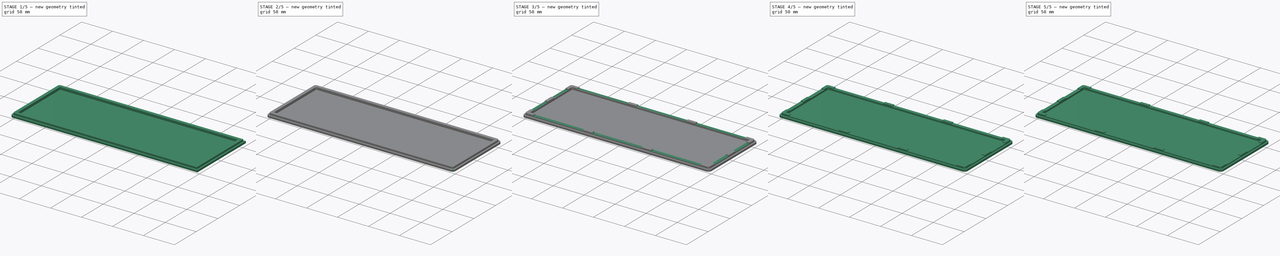
[diagram: build sequence overview — one tinted view per stage of 5, left to right]
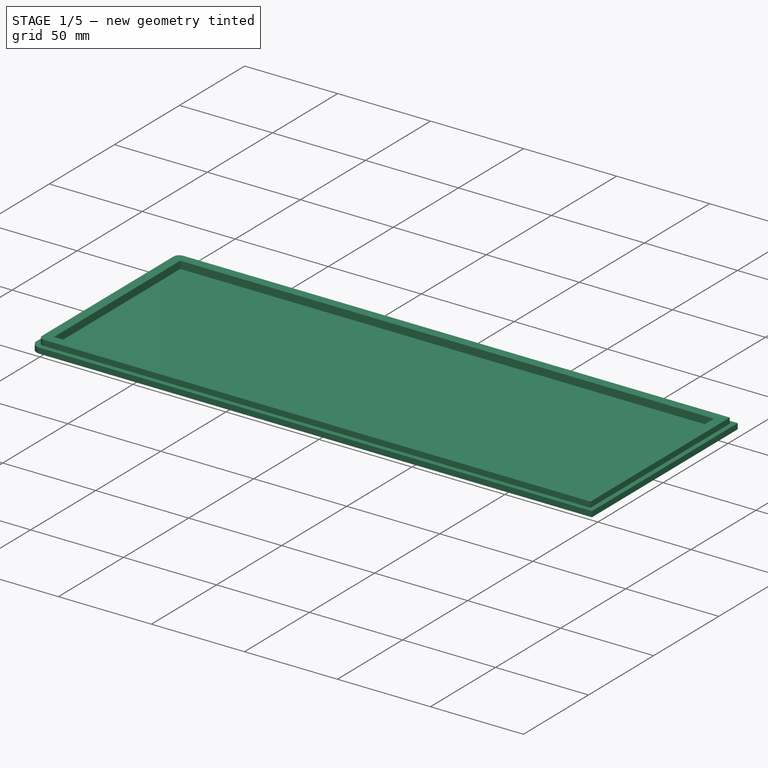
[diagram: stage 1 of 5 — iso view after this stage's code; geometry added in this stage tinted green]
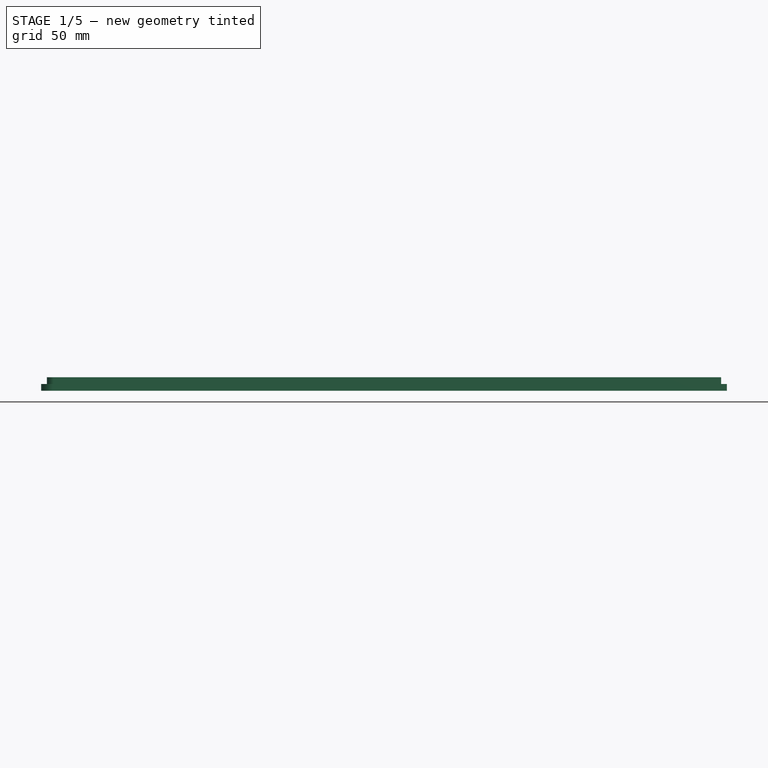
[diagram: stage 1 of 5 — front view after this stage's code; geometry added in this stage tinted green]
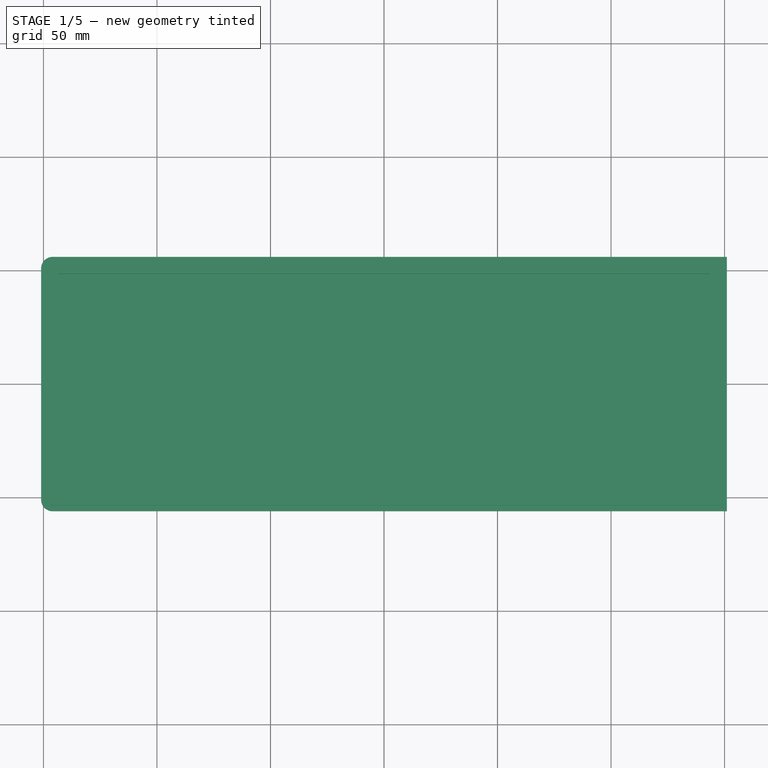
[diagram: stage 1 of 5 — top view after this stage's code; geometry added in this stage tinted green]
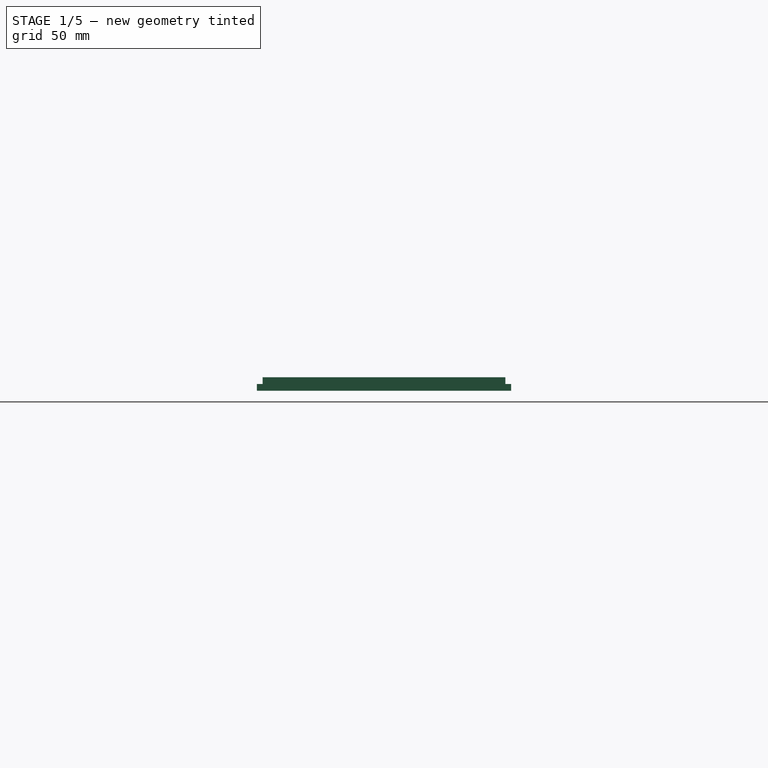
[diagram: stage 1 of 5 — right view after this stage's code; geometry added in this stage tinted green]
FCSTD DOCUMENT  (FreeCAD 0.19R)
Label: jykb60_gasket_bottom_v2
License: All rights reserved
LicenseURL: http://en.wikipedia.org/wiki/All_rights_reserved
objects: PartDesign::Fillet×32, Sketcher::SketchObject×5, PartDesign::Pocket×4, PartDesign::Pad×1, PartDesign::Body×1
note: 80 computed .brp shape members not serialized (recipe doc carries the construction recipe); baked Part::Feature solids carry a one-line shape summary decoded from their .brp

FEATURE [Sketcher::SketchObject] Sketch
  FullyConstrained = true
  MapMode = 5
  Support = -> [XY_Plane]
  sketch-geometry (4):
    g0: LineSegment StartX=-151 StartY=56 StartZ=0 EndX=151 EndY=56 EndZ=0
    g1: LineSegment StartX=151 StartY=56 StartZ=0 EndX=151 EndY=-56 EndZ=0
    g2: LineSegment StartX=151 StartY=-56 StartZ=0 EndX=-151 EndY=-56 EndZ=0
    g3: LineSegment StartX=-151 StartY=-56 StartZ=0 EndX=-151 EndY=56 EndZ=0
  constraints (11):
    c: Coincident(g0,g1)
    c: Coincident(g1,g2)
    c: Coincident(g2,g3)
    c: Coincident(g3,g0)
    c: Horizontal(g0)
    c: Horizontal(g2)
    c: Vertical(g1)
    c: Vertical(g3)
    c: DistanceX(g0,g0) = 302
    c: DistanceY(g1,g1) = 112
    c: Symmetric(g0,g1,g-1)
FEATURE [PartDesign::Pad] Pad
  Direction = (1,1,1)
  Length = 6
  Length2 = 100
  Profile = -> Sketch
  Type = 0
FEATURE [Sketcher::SketchObject] Sketch001
  FullyConstrained = true
  MapMode = 5
  Placement = pos=(0,0,6) rot=(0,0,1;0rad)
  Support = -> [Pad]
  sketch-geometry (4):
    g0: LineSegment StartX=-143.5 StartY=48.5 StartZ=0 EndX=143.5 EndY=48.5 EndZ=0
    g1: LineSegment StartX=143.5 StartY=48.5 StartZ=0 EndX=143.5 EndY=-48.5 EndZ=0
    g2: LineSegment StartX=143.5 StartY=-48.5 StartZ=0 EndX=-143.5 EndY=-48.5 EndZ=0
    g3: LineSegment StartX=-143.5 StartY=-48.5 StartZ=0 EndX=-143.5 EndY=48.5 EndZ=0
  constraints (11):
    c: Coincident(g0,g1)
    c: Coincident(g1,g2)
    c: Coincident(g2,g3)
    c: Coincident(g3,g0)
    c: Horizontal(g0)
    c: Horizontal(g2)
    c: Vertical(g1)
    c: Vertical(g3)
    c: DistanceX(g0,g0) = 287
    c: DistanceY(g1,g1) = 97
    c: Symmetric(g0,g1,g-1)
FEATURE [PartDesign::Pocket] Pocket
  BaseFeature = -> Pad
  Length = 4
  Length2 = 100
  Profile = -> Sketch001
  Type = 0
FEATURE [Sketcher::SketchObject] Sketch002
  FullyConstrained = true
  MapMode = 5
  Placement = pos=(0,0,6) rot=(0,0,1;0rad)
  Support = -> [Pocket]
  sketch-geometry (8):
    g0: LineSegment StartX=-148.48 StartY=53.48 StartZ=0 EndX=148.48 EndY=53.48 EndZ=0
    g1: LineSegment StartX=148.48 StartY=53.48 StartZ=0 EndX=148.48 EndY=-53.48 EndZ=0
    g2: LineSegment StartX=148.48 StartY=-53.48 StartZ=0 EndX=-148.48 EndY=-53.48 EndZ=0
    g3: LineSegment StartX=-148.48 StartY=-53.48 StartZ=0 EndX=-148.48 EndY=53.48 EndZ=0
    g4: LineSegment StartX=-151 StartY=56 StartZ=0 EndX=151 EndY=56 EndZ=0
    g5: LineSegment StartX=151 StartY=56 StartZ=0 EndX=151 EndY=-56 EndZ=0
    g6: LineSegment StartX=151 StartY=-56 StartZ=0 EndX=-151 EndY=-56 EndZ=0
    g7: LineSegment StartX=-151 StartY=-56 StartZ=0 EndX=-151 EndY=56 EndZ=0
  constraints (22):
    c: Coincident(g0,g1)
    c: Coincident(g1,g2)
    c: Coincident(g2,g3)
    c: Coincident(g3,g0)
    c: Horizontal(g0)
    c: Horizontal(g2)
    c: Vertical(g1)
    c: Vertical(g3)
    c: DistanceX(g0,g0) = 296.96
    c: DistanceY(g1,g1) = 106.96
    c: Symmetric(g0,g1,g-1)
    c: Coincident(g4,g5)
    c: Coincident(g5,g6)
    c: Coincident(g6,g7)
    c: Coincident(g7,g4)
    c: Horizontal(g4)
    c: Horizontal(g6)
    c: Vertical(g5)
    c: Vertical(g7)
    c: DistanceX(g4,g4) = 302
    c: DistanceY(g5,g5) = 112
    c: Symmetric(g4,g5,g-1)
FEATURE [PartDesign::Pocket] Pocket001
  BaseFeature = -> Pocket
  Length = 3.02
  Length2 = 100
  Profile = -> Sketch002
  Type = 0
FEATURE [PartDesign::Fillet] Fillet
  Base = -> Pocket001 [Edge17]
  BaseFeature = -> Pocket001
  Radius = 3
  SupportTransform = false
FEATURE [PartDesign::Fillet] Fillet001
  Base = -> Fillet [Edge26]
  BaseFeature = -> Fillet
  Radius = 5
  SupportTransform = false
FEATURE [PartDesign::Fillet] Fillet002
  Base = -> Fillet001 [Edge19]
  BaseFeature = -> Fillet001
  Radius = 5
  SupportTransform = false
FEATURE [PartDesign::Fillet] Fillet003
  Base = -> Fillet002 [Edge26]
  BaseFeature = -> Fillet002
  Radius = 3
  SupportTransform = false
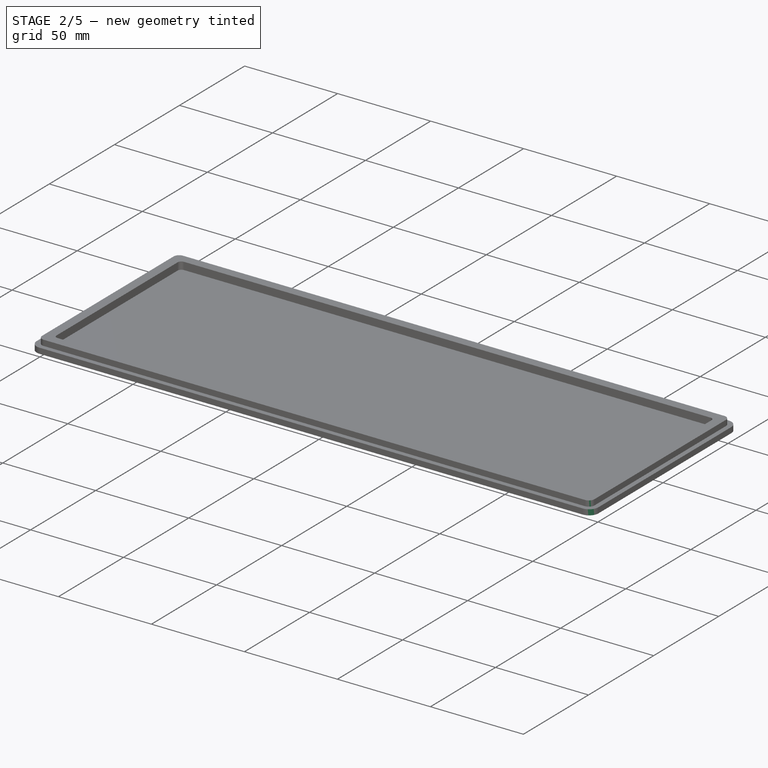
[diagram: stage 2 of 5 — iso view after this stage's code; geometry added in this stage tinted green]
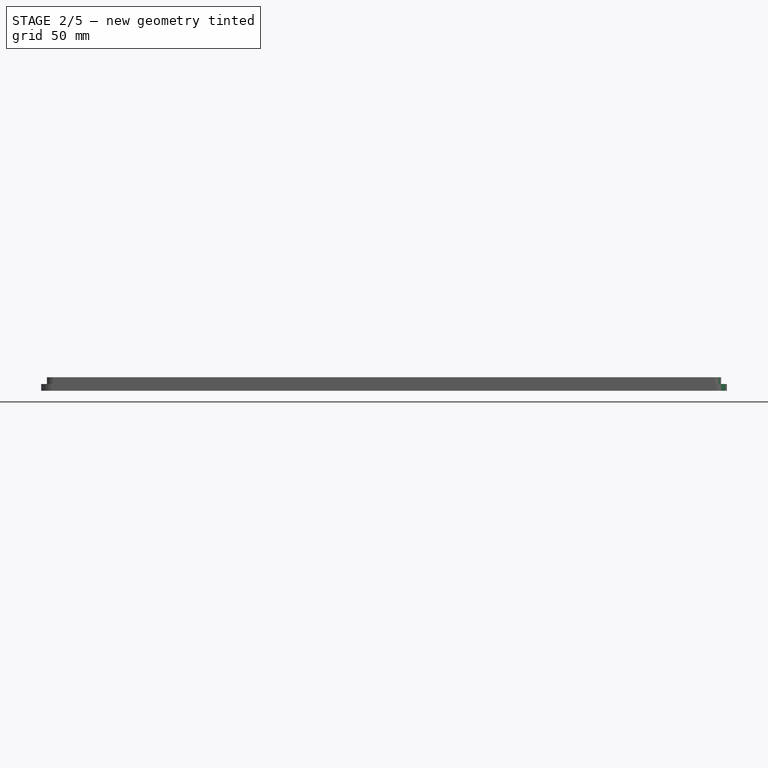
[diagram: stage 2 of 5 — front view after this stage's code; geometry added in this stage tinted green]
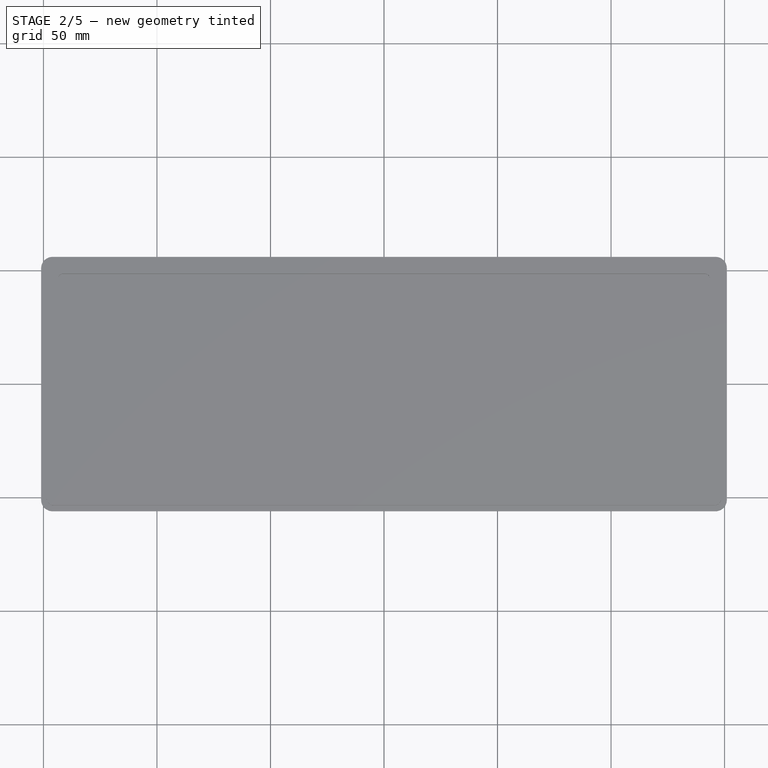
[diagram: stage 2 of 5 — top view after this stage's code; geometry added in this stage tinted green]
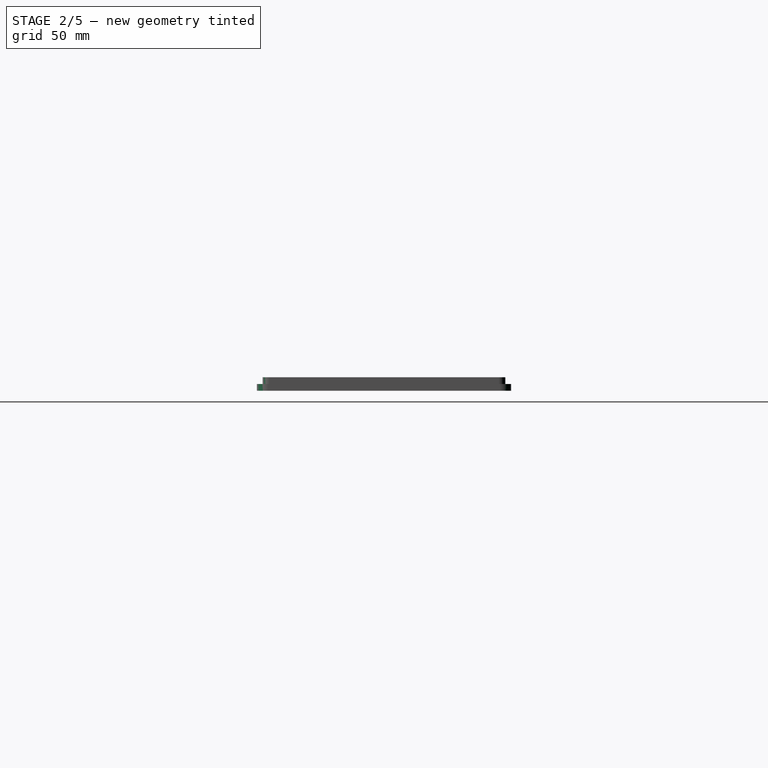
[diagram: stage 2 of 5 — right view after this stage's code; geometry added in this stage tinted green]
FEATURE [PartDesign::Fillet] Fillet004
  Base = -> Fillet003 [Edge41]
  BaseFeature = -> Fillet003
  Radius = 2
  SupportTransform = false
FEATURE [PartDesign::Fillet] Fillet005
  Base = -> Fillet004 [Edge19]
  BaseFeature = -> Fillet004
  Radius = 2
  SupportTransform = false
FEATURE [PartDesign::Fillet] Fillet006
  Base = -> Fillet005 [Edge53]
  BaseFeature = -> Fillet005
  Radius = 5
  SupportTransform = false
FEATURE [PartDesign::Fillet] Fillet007
  Base = -> Fillet006 [Edge38]
  BaseFeature = -> Fillet006
  Radius = 3
  SupportTransform = false
FEATURE [PartDesign::Fillet] Fillet008
  Base = -> Fillet007 [Edge56]
  BaseFeature = -> Fillet007
  Radius = 2
  SupportTransform = false
FEATURE [PartDesign::Fillet] Fillet009
  Base = -> Fillet008 [Edge58]
  BaseFeature = -> Fillet008
  Radius = 5
  SupportTransform = false
FEATURE [PartDesign::Fillet] Fillet010
  Base = -> Fillet009 [Edge40]
  BaseFeature = -> Fillet009
  Radius = 3
  SupportTransform = false
FEATURE [PartDesign::Fillet] Fillet011
  Base = -> Fillet010 [Edge63]
  BaseFeature = -> Fillet010
  Radius = 2
  SupportTransform = false
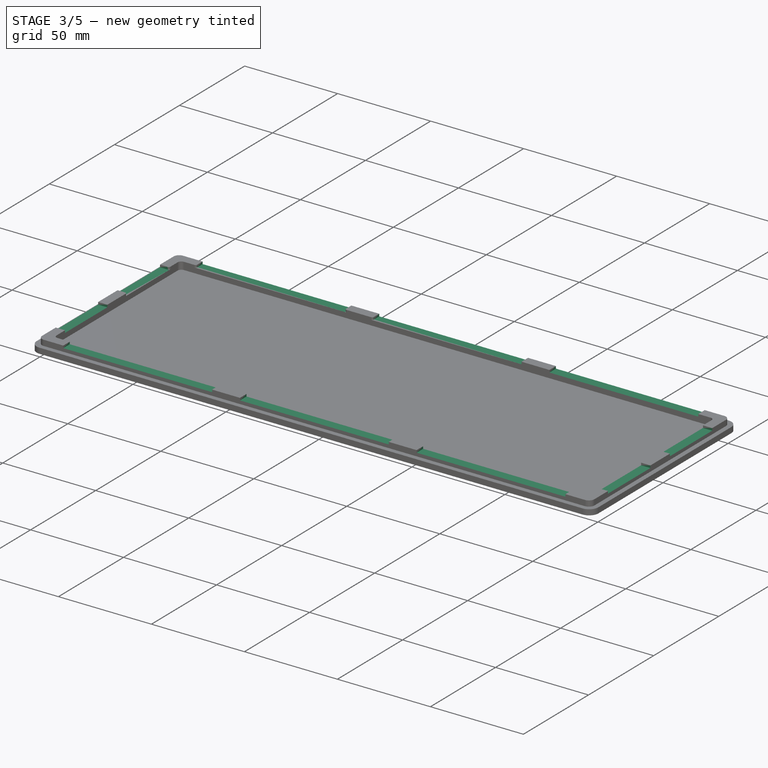
[diagram: stage 3 of 5 — iso view after this stage's code; geometry added in this stage tinted green]
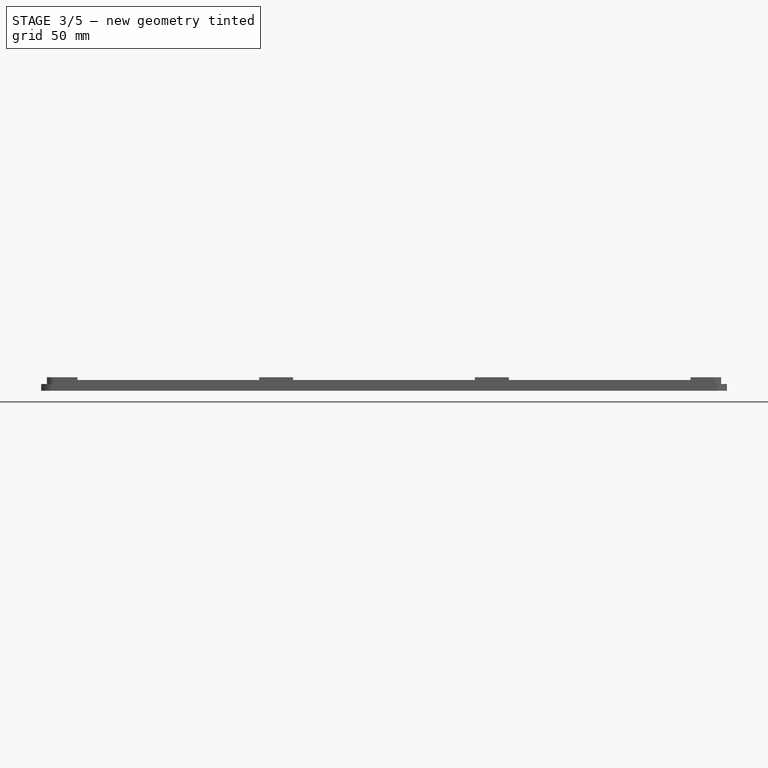
[diagram: stage 3 of 5 — front view after this stage's code; geometry added in this stage tinted green]
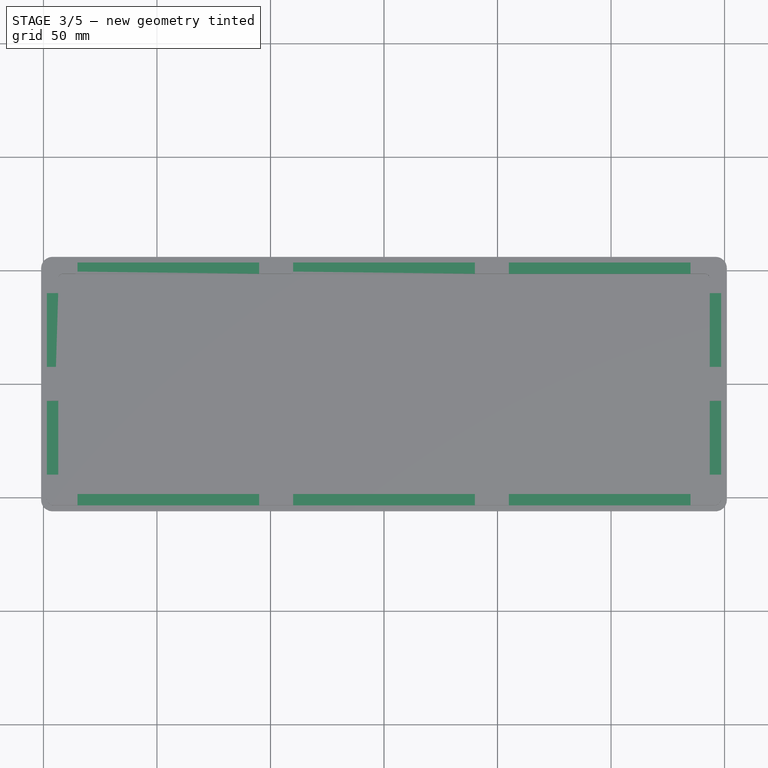
[diagram: stage 3 of 5 — top view after this stage's code; geometry added in this stage tinted green]
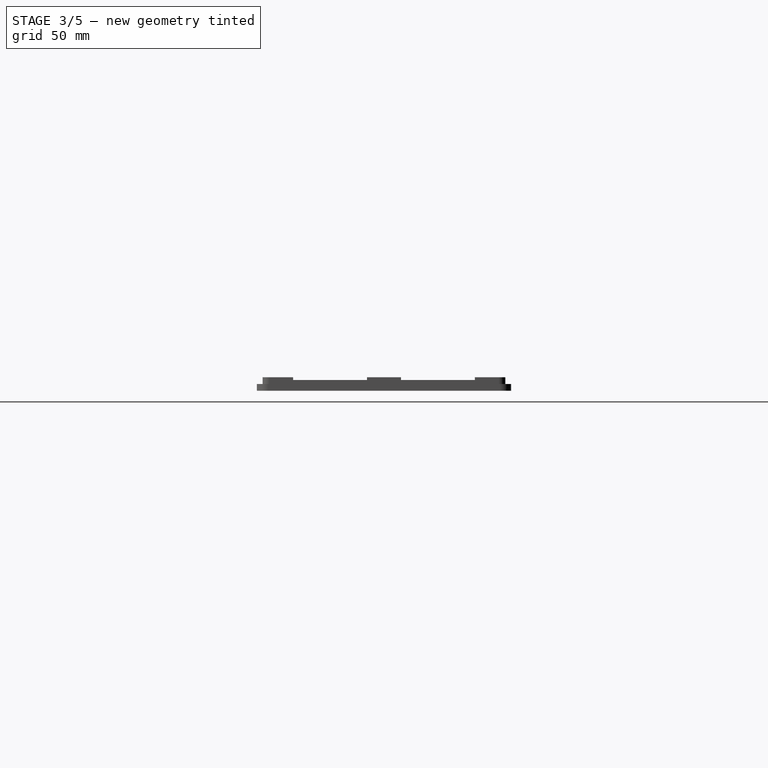
[diagram: stage 3 of 5 — right view after this stage's code; geometry added in this stage tinted green]
FEATURE [Sketcher::SketchObject] Sketch003
  FullyConstrained = true
  MapMode = 5
  Placement = pos=(0,0,6) rot=(0,0,1;0rad)
  Support = -> [Fillet011]
  sketch-geometry (24):
    g0: LineSegment StartX=-40 StartY=53.5 StartZ=0 EndX=40 EndY=53.5 EndZ=0
    g1: LineSegment StartX=40 StartY=53.5 StartZ=0 EndX=40 EndY=48.5 EndZ=0
    g2: LineSegment StartX=40 StartY=48.5 StartZ=0 EndX=-40 EndY=48.5 EndZ=0
    g3: LineSegment StartX=-40 StartY=48.5 StartZ=0 EndX=-40 EndY=53.5 EndZ=0
    g4: LineSegment StartX=-135 StartY=53.5 StartZ=0 EndX=-55 EndY=53.5 EndZ=0
    g5: LineSegment StartX=-55 StartY=53.5 StartZ=0 EndX=-55 EndY=48.5 EndZ=0
    g6: LineSegment StartX=-55 StartY=48.5 StartZ=0 EndX=-135 EndY=48.5 EndZ=0
    g7: LineSegment StartX=-135 StartY=48.5 StartZ=0 EndX=-135 EndY=53.5 EndZ=0
    g8: LineSegment StartX=55 StartY=53.5 StartZ=0 EndX=135 EndY=53.5 EndZ=0
    g9: LineSegment StartX=135 StartY=53.5 StartZ=0 EndX=135 EndY=48.5 EndZ=0
    g10: LineSegment StartX=135 StartY=48.5 StartZ=0 EndX=55 EndY=48.5 EndZ=0
    g11: LineSegment StartX=55 StartY=48.5 StartZ=0 EndX=55 EndY=53.5 EndZ=0
    g12: LineSegment StartX=55 StartY=-48.5 StartZ=0 EndX=135 EndY=-48.5 EndZ=0
    g13: LineSegment StartX=135 StartY=-48.5 StartZ=0 EndX=135 EndY=-53.5 EndZ=0
    g14: LineSegment StartX=135 StartY=-53.5 StartZ=0 EndX=55 EndY=-53.5 EndZ=0
    g15: LineSegment StartX=55 StartY=-53.5 StartZ=0 EndX=55 EndY=-48.5 EndZ=0
    g16: LineSegment StartX=-40 StartY=-48.5 StartZ=0 EndX=40 EndY=-48.5 EndZ=0
    g17: LineSegment StartX=40 StartY=-48.5 StartZ=0 EndX=40 EndY=-53.5 EndZ=0
    g18: LineSegment StartX=40 StartY=-53.5 StartZ=0 EndX=-40 EndY=-53.5 EndZ=0
    g19: LineSegment StartX=-40 StartY=-53.5 StartZ=0 EndX=-40 EndY=-48.5 EndZ=0
    g20: LineSegment StartX=-135 StartY=-48.5 StartZ=0 EndX=-55 EndY=-48.5 EndZ=0
    g21: LineSegment StartX=-55 StartY=-48.5 StartZ=0 EndX=-55 EndY=-53.5 EndZ=0
    g22: LineSegment StartX=-55 StartY=-53.5 StartZ=0 EndX=-135 EndY=-53.5 EndZ=0
    g23: LineSegment StartX=-135 StartY=-53.5 StartZ=0 EndX=-135 EndY=-48.5 EndZ=0
  constraints (72):
    c: Coincident(g0,g1)
    c: Coincident(g1,g2)
    c: Coincident(g2,g3)
    c: Coincident(g3,g0)
    c: Horizontal(g0)
    c: Horizontal(g2)
    c: Vertical(g1)
    c: Vertical(g3)
    c: Coincident(g4,g5)
    c: Coincident(g5,g6)
    c: Coincident(g6,g7)
    c: Coincident(g7,g4)
    c: Horizontal(g4)
    c: Horizontal(g6)
    c: Vertical(g5)
    c: Vertical(g7)
    c: Coincident(g8,g9)
    c: Coincident(g9,g10)
    c: Coincident(g10,g11)
    c: Coincident(g11,g8)
    c: Horizontal(g8)
    c: Horizontal(g10)
    c: Vertical(g9)
    c: Vertical(g11)
    c: Coincident(g12,g13)
    c: Coincident(g13,g14)
    c: Coincident(g14,g15)
    c: Coincident(g15,g12)
    c: Horizontal(g12)
    c: Horizontal(g14)
    c: Vertical(g13)
    c: Vertical(g15)
    c: Coincident(g16,g17)
    c: Coincident(g17,g18)
    c: Coincident(g18,g19)
    c: Coincident(g19,g16)
    c: Horizontal(g16)
    c: Horizontal(g18)
    c: Vertical(g17)
    c: Vertical(g19)
    c: Coincident(g20,g21)
    c: Coincident(g21,g22)
    c: Coincident(g22,g23)
    c: Coincident(g23,g20)
    c: Horizontal(g20)
    c: Horizontal(g22)
    c: Vertical(g21)
    c: Vertical(g23)
    c: DistanceX(g8,g8) = 80
    c: DistanceX(g0,g0) = 80
    c: DistanceX(g4,g4) = 80
    c: DistanceX(g20,g20) = 80
    c: DistanceX(g16,g16) = 80
    c: DistanceX(g12,g12) = 80
    c: DistanceY(g9,g9) = 5
    c: DistanceY(g1,g1) = 5
    c: DistanceY(g5,g5) = 5
    c: DistanceY(g21,g21) = 5
    c: DistanceY(g17,g17) = 5
    c: DistanceY(g13,g13) = 5
    c: DistanceX(g4,g0) = 15
    c: DistanceX(g0,g8) = 15
    c: DistanceX(g16,g12) = 15
    c: DistanceX(g20,g16) = 15
    c: DistanceX(g-1,g0) = 40
    c: DistanceX(g-1,g16) = 40
    c: DistanceY(g-1,g5) = 48.5
    c: DistanceY(g-1,g2) = 48.5
    c: DistanceY(g-1,g10) = 48.5
    c: DistanceY(g12,g-1) = 48.5
    c: DistanceY(g16,g-1) = 48.5
    c: DistanceY(g20,g-1) = 48.5
FEATURE [PartDesign::Pocket] Pocket002
  BaseFeature = -> Fillet011
  Length = 1.25
  Length2 = 100
  Profile = -> Sketch003
  Type = 0
FEATURE [Sketcher::SketchObject] Sketch004
  FullyConstrained = true
  MapMode = 5
  Placement = pos=(0,0,6) rot=(0,0,1;0rad)
  Support = -> [Pocket002]
  sketch-geometry (16):
    g0: LineSegment StartX=-148.5 StartY=40 StartZ=0 EndX=-143.5 EndY=40 EndZ=0
    g1: LineSegment StartX=-143.5 StartY=40 StartZ=0 EndX=-143.5 EndY=7.5 EndZ=0
    g2: LineSegment StartX=-143.5 StartY=7.5 StartZ=0 EndX=-148.5 EndY=7.5 EndZ=0
    g3: LineSegment StartX=-148.5 StartY=7.5 StartZ=0 EndX=-148.5 EndY=40 EndZ=0
    g4: LineSegment StartX=-148.5 StartY=-7.5 StartZ=0 EndX=-143.5 EndY=-7.5 EndZ=0
    g5: LineSegment StartX=-143.5 StartY=-7.5 StartZ=0 EndX=-143.5 EndY=-40 EndZ=0
    g6: LineSegment StartX=-143.5 StartY=-40 StartZ=0 EndX=-148.5 EndY=-40 EndZ=0
    g7: LineSegment StartX=-148.5 StartY=-40 StartZ=0 EndX=-148.5 EndY=-7.5 EndZ=0
    g8: LineSegment StartX=143.5 StartY=40 StartZ=0 EndX=148.5 EndY=40 EndZ=0
    g9: LineSegment StartX=148.5 StartY=40 StartZ=0 EndX=148.5 EndY=7.5 EndZ=0
    g10: LineSegment StartX=148.5 StartY=7.5 StartZ=0 EndX=143.5 EndY=7.5 EndZ=0
    g11: LineSegment StartX=143.5 StartY=7.5 StartZ=0 EndX=143.5 EndY=40 EndZ=0
    g12: LineSegment StartX=143.5 StartY=-7.5 StartZ=0 EndX=148.5 EndY=-7.5 EndZ=0
    g13: LineSegment StartX=148.5 StartY=-7.5 StartZ=0 EndX=148.5 EndY=-40 EndZ=0
    g14: LineSegment StartX=148.5 StartY=-40 StartZ=0 EndX=143.5 EndY=-40 EndZ=0
    g15: LineSegment StartX=143.5 StartY=-40 StartZ=0 EndX=143.5 EndY=-7.5 EndZ=0
  constraints (48):
    c: Coincident(g0,g1)
    c: Coincident(g1,g2)
    c: Coincident(g2,g3)
    c: Coincident(g3,g0)
    c: Horizontal(g0)
    c: Horizontal(g2)
    c: Vertical(g1)
    c: Vertical(g3)
    c: Coincident(g4,g5)
    c: Coincident(g5,g6)
    c: Coincident(g6,g7)
    c: Coincident(g7,g4)
    c: Horizontal(g4)
    c: Horizontal(g6)
    c: Vertical(g5)
    c: Vertical(g7)
    c: Coincident(g8,g9)
    c: Coincident(g9,g10)
    c: Coincident(g10,g11)
    c: Coincident(g11,g8)
    c: Horizontal(g8)
    c: Horizontal(g10)
    c: Vertical(g9)
    c: Vertical(g11)
    c: Coincident(g12,g13)
    c: Coincident(g13,g14)
    c: Coincident(g14,g15)
    c: Coincident(g15,g12)
    c: Horizontal(g12)
    c: Horizontal(g14)
    c: Vertical(g13)
    c: Vertical(g15)
    c: DistanceX(g8,g8) = 5
    c: DistanceX(g14,g14) = 5
    c: DistanceX(g0,g0) = 5
    c: DistanceX(g6,g6) = 5
    c: DistanceY(g9,g9) = 32.5
    c: DistanceY(g13,g13) = 32.5
    c: DistanceY(g1,g1) = 32.5
    c: DistanceY(g5,g5) = 32.5
    c: DistanceY(g-1,g2) = 7.5
    c: DistanceY(g4,g-1) = 7.5
    c: DistanceY(g-1,g9) = 7.5
    c: DistanceY(g12,g-1) = 7.5
    c: DistanceX(g0,g-1) = 143.5
    c: DistanceX(g5,g-1) = 143.5
    c: DistanceX(g-1,g8) = 143.5
    c: DistanceX(g-1,g14) = 143.5
FEATURE [PartDesign::Pocket] Pocket003
  BaseFeature = -> Pocket002
  Length = 1.25
  Length2 = 100
  Profile = -> Sketch004
  Type = 0
FEATURE [PartDesign::Fillet] Fillet012
  Base = -> Pocket003 [Edge53]
  BaseFeature = -> Pocket003
  Radius = 1
  SupportTransform = false
FEATURE [PartDesign::Fillet] Fillet013
  Base = -> Fillet012 [Edge3]
  BaseFeature = -> Fillet012
  Radius = 1
  SupportTransform = false
FEATURE [PartDesign::Fillet] Fillet014
  Base = -> Fillet013 [Edge9]
  BaseFeature = -> Fillet013
  Radius = 1
  SupportTransform = false
FEATURE [PartDesign::Fillet] Fillet015
  Base = -> Fillet014 [Edge95]
  BaseFeature = -> Fillet014
  Radius = 1
  SupportTransform = false
FEATURE [PartDesign::Fillet] Fillet016
  Base = -> Fillet015 [Edge17]
  BaseFeature = -> Fillet015
  Radius = 1
  SupportTransform = false
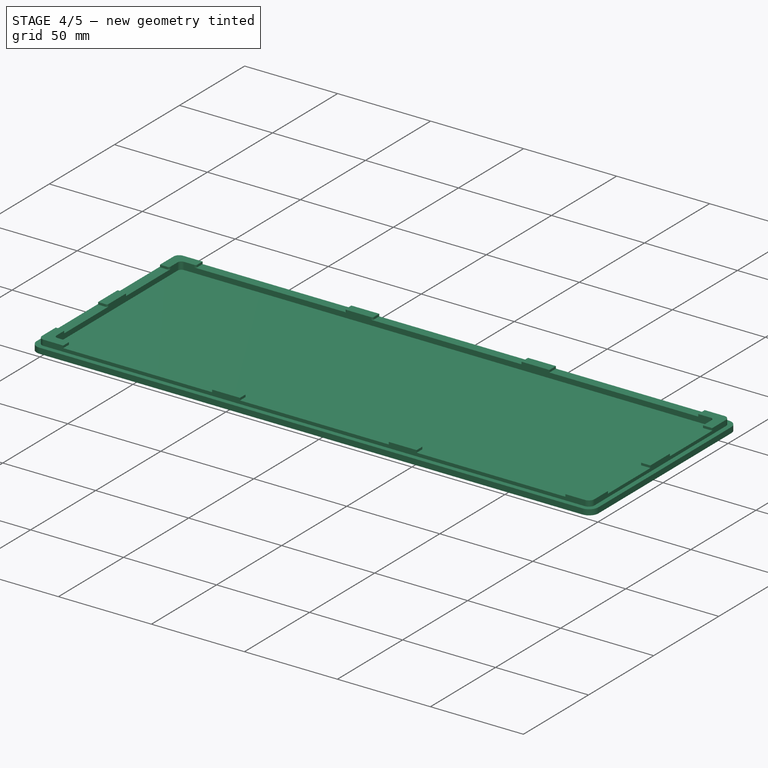
[diagram: stage 4 of 5 — iso view after this stage's code; geometry added in this stage tinted green]
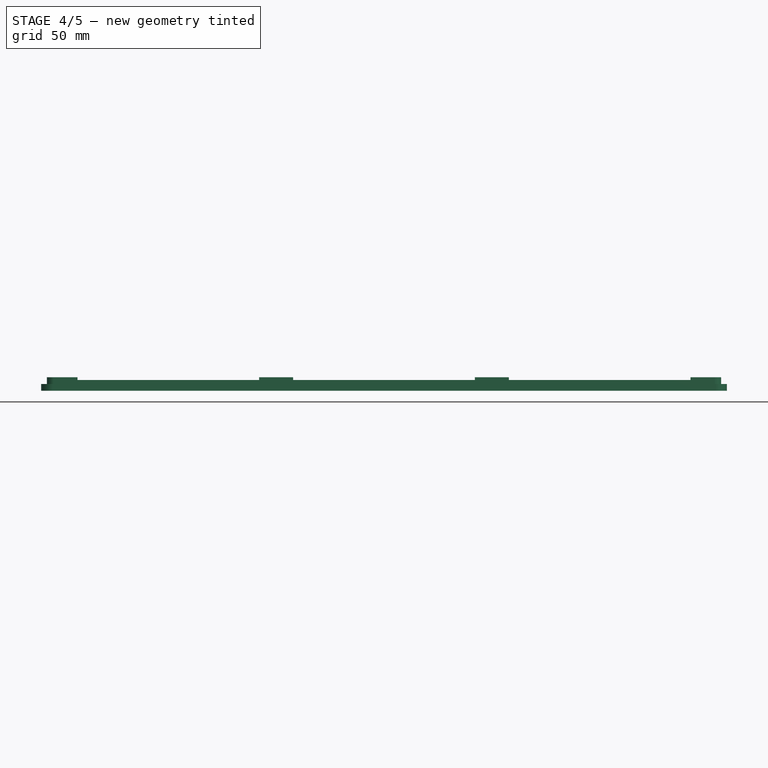
[diagram: stage 4 of 5 — front view after this stage's code; geometry added in this stage tinted green]
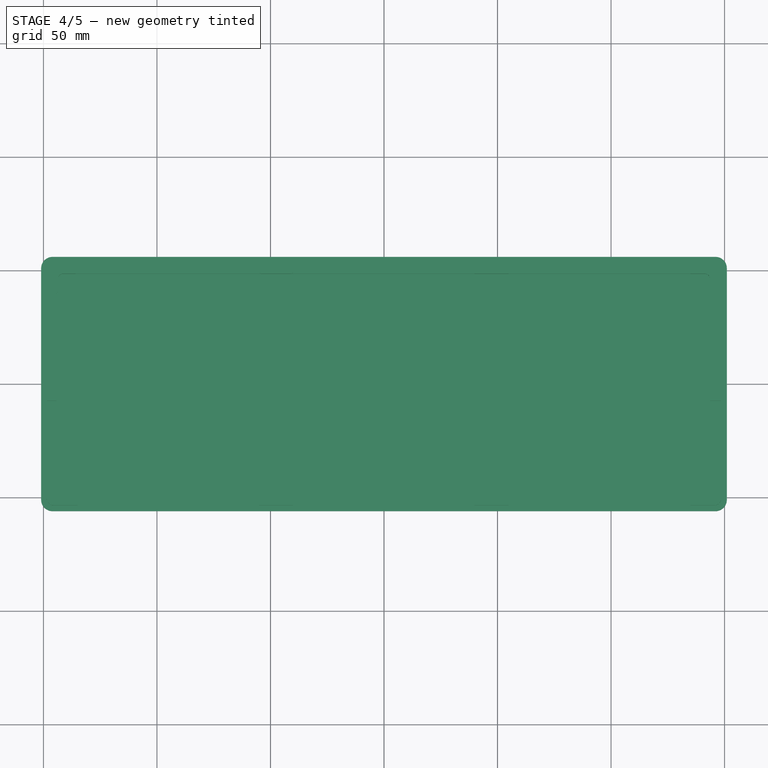
[diagram: stage 4 of 5 — top view after this stage's code; geometry added in this stage tinted green]
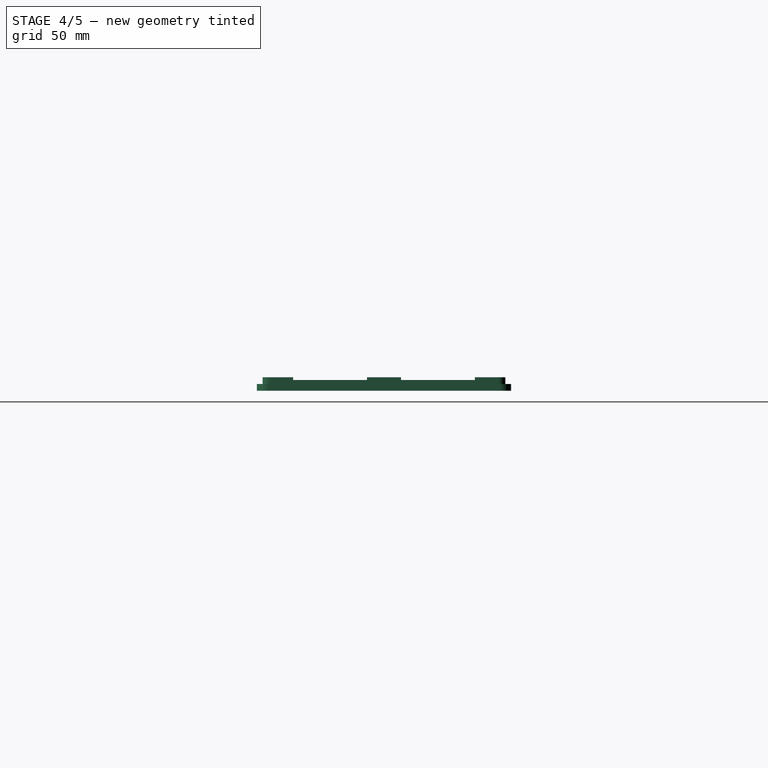
[diagram: stage 4 of 5 — right view after this stage's code; geometry added in this stage tinted green]
FEATURE [PartDesign::Fillet] Fillet017
  Base = -> Fillet016 [Edge3]
  BaseFeature = -> Fillet016
  Radius = 1
  SupportTransform = false
FEATURE [PartDesign::Fillet] Fillet018
  Base = -> Fillet017 [Edge8]
  BaseFeature = -> Fillet017
  Radius = 1
  SupportTransform = false
FEATURE [PartDesign::Fillet] Fillet019
  Base = -> Fillet018 [Edge96]
  BaseFeature = -> Fillet018
  Radius = 1
  SupportTransform = false
FEATURE [PartDesign::Fillet] Fillet020
  Base = -> Fillet019 [Edge21]
  BaseFeature = -> Fillet019
  Radius = 1
  SupportTransform = false
FEATURE [PartDesign::Fillet] Fillet021
  Base = -> Fillet020 [Edge3]
  BaseFeature = -> Fillet020
  Radius = 1
  SupportTransform = false
FEATURE [PartDesign::Fillet] Fillet022
  Base = -> Fillet021 [Edge9]
  BaseFeature = -> Fillet021
  Radius = 1
  SupportTransform = false
FEATURE [PartDesign::Fillet] Fillet023
  Base = -> Fillet022 [Edge3]
  BaseFeature = -> Fillet022
  Radius = 1
  SupportTransform = false
FEATURE [PartDesign::Fillet] Fillet024
  Base = -> Fillet023 [Edge8]
  BaseFeature = -> Fillet023
  Radius = 1
  SupportTransform = false
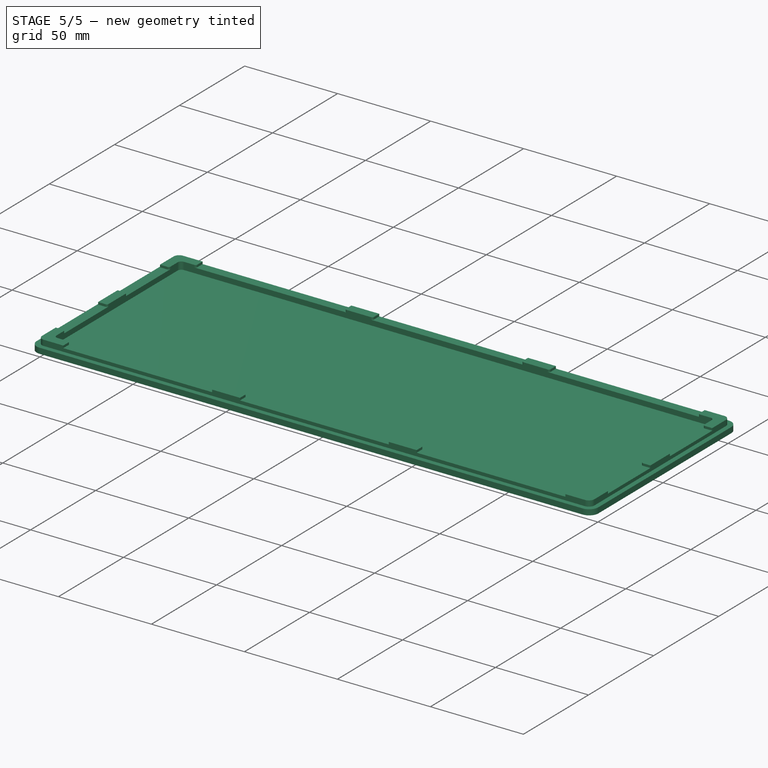
[diagram: stage 5 of 5 — iso view after this stage's code; geometry added in this stage tinted green]
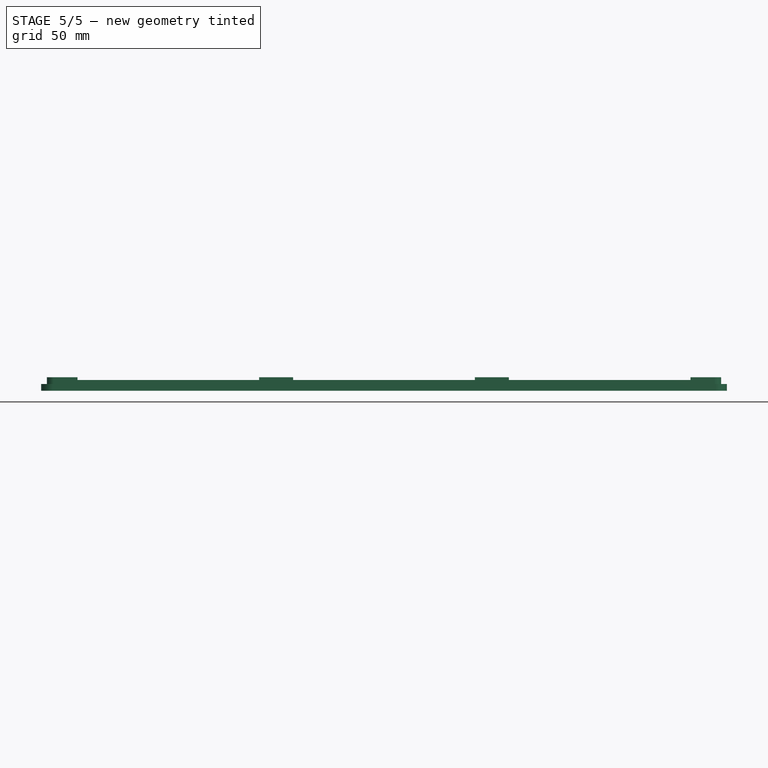
[diagram: stage 5 of 5 — front view after this stage's code; geometry added in this stage tinted green]
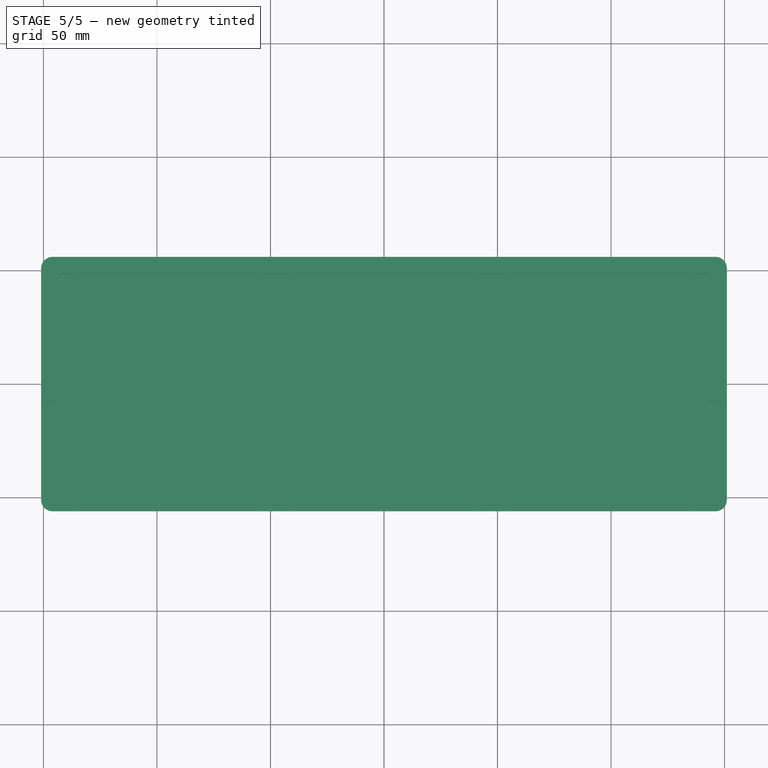
[diagram: stage 5 of 5 — top view after this stage's code; geometry added in this stage tinted green]
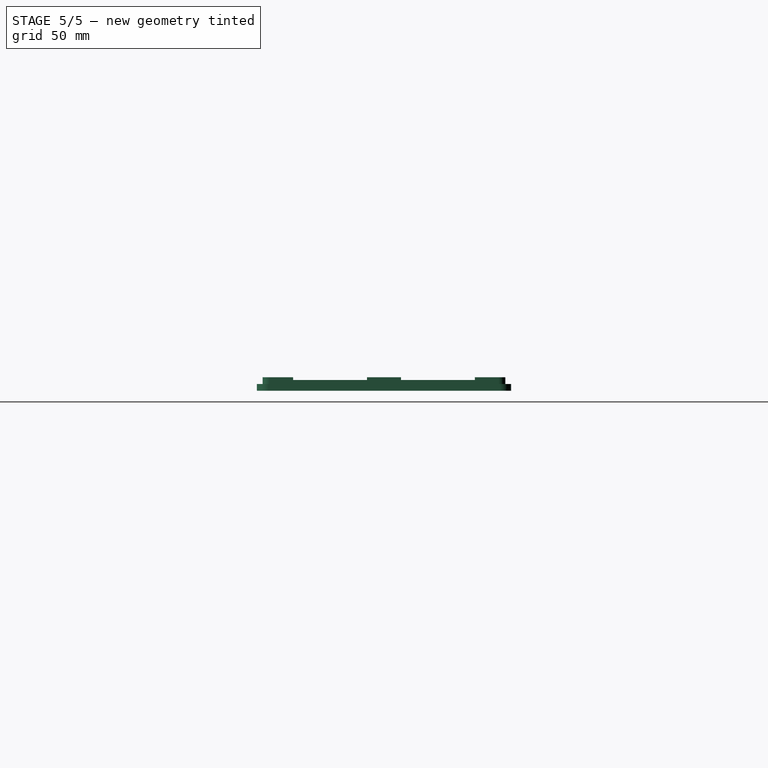
[diagram: stage 5 of 5 — right view after this stage's code; geometry added in this stage tinted green]
FEATURE [PartDesign::Fillet] Fillet025
  Base = -> Fillet024 [Edge88]
  BaseFeature = -> Fillet024
  Radius = 1
  SupportTransform = false
FEATURE [PartDesign::Fillet] Fillet026
  Base = -> Fillet025 [Edge21]
  BaseFeature = -> Fillet025
  Radius = 1
  SupportTransform = false
FEATURE [PartDesign::Fillet] Fillet027
  Base = -> Fillet026 [Edge3]
  BaseFeature = -> Fillet026
  Radius = 1
  SupportTransform = false
FEATURE [PartDesign::Fillet] Fillet028
  Base = -> Fillet027 [Edge81]
  BaseFeature = -> Fillet027
  Radius = 1
  SupportTransform = false
FEATURE [PartDesign::Fillet] Fillet029
  Base = -> Fillet028 [Edge69]
  BaseFeature = -> Fillet028
  Radius = 1
  SupportTransform = false
FEATURE [PartDesign::Fillet] Fillet030
  Base = -> Fillet029 [Edge37]
  BaseFeature = -> Fillet029
  Radius = 1
  SupportTransform = false
FEATURE [PartDesign::Fillet] Fillet031
  Base = -> Fillet030 [Edge3]
  BaseFeature = -> Fillet030
  Radius = 1
  SupportTransform = false
FEATURE [PartDesign::Body] Body
  Group = -> [Sketch,Pad,Sketch001,Pocket,Sketch002,Pocket001,Fillet,Fillet001,Fillet002,Fillet003,Fillet004,Fillet005,Fillet006,Fillet007,Fillet008,Fillet009,Fillet010,Fillet011,Sketch003,Pocket002,Sketch004,Pocket003,Fillet012,Fillet013,Fillet014,Fillet015,Fillet016,Fillet017,Fillet018,Fillet019,Fillet020,Fillet021,Fillet022,Fillet023,Fillet024,Fillet025,Fillet026,Fillet027,Fillet028,Fillet029,Fillet030,+1 more]
  Origin = -> Origin
  Tip = -> Fillet031
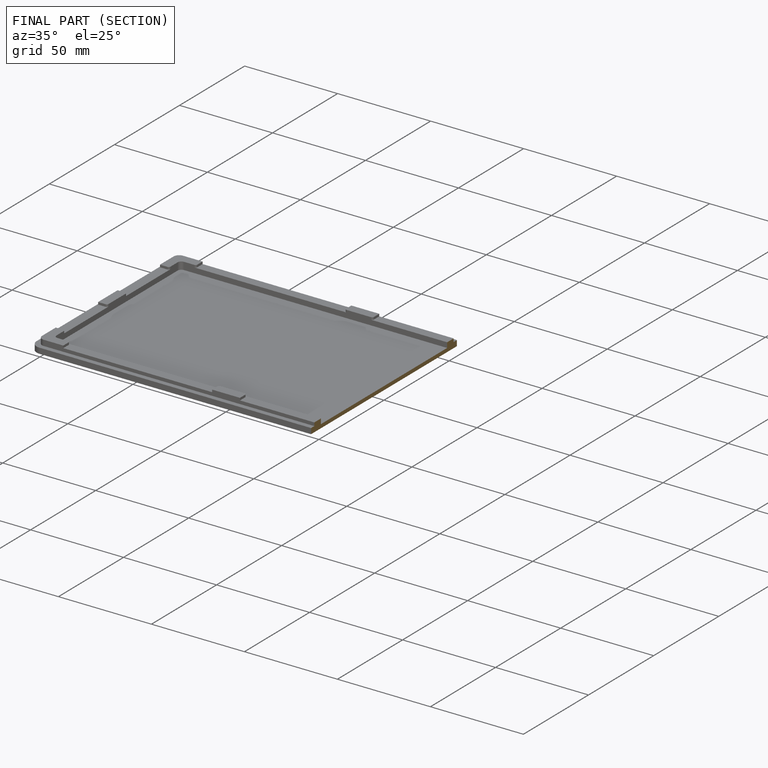
[diagram: finished part — half-section view (interior)]
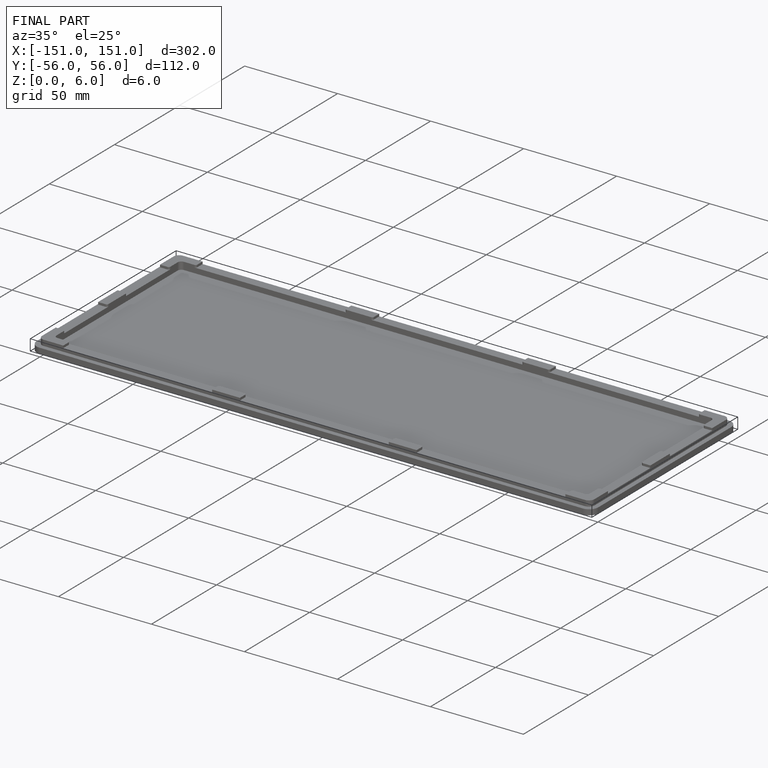
[diagram: finished part — iso view with bounding-box wireframe]
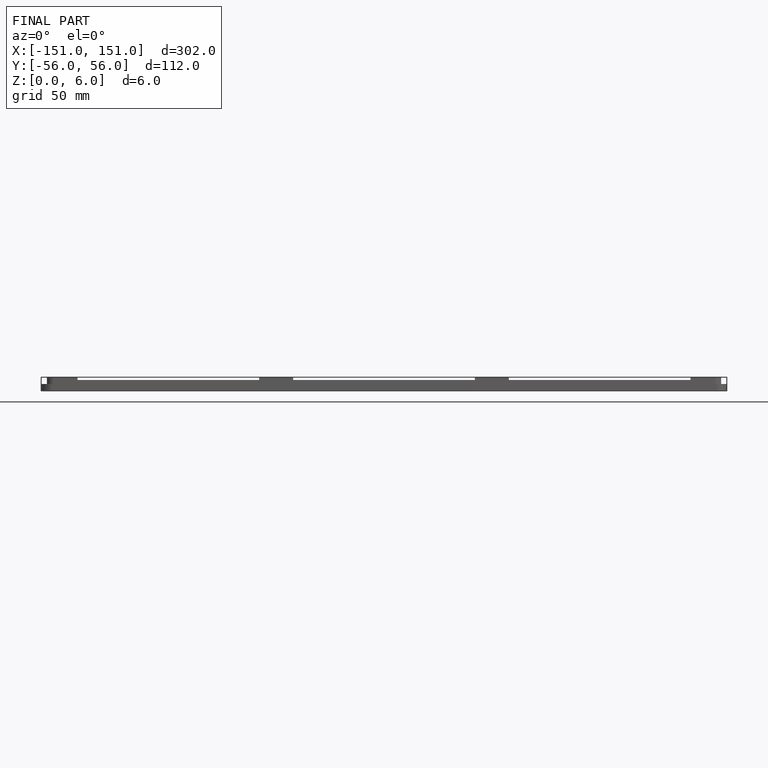
[diagram: finished part — front view with bounding-box wireframe]
